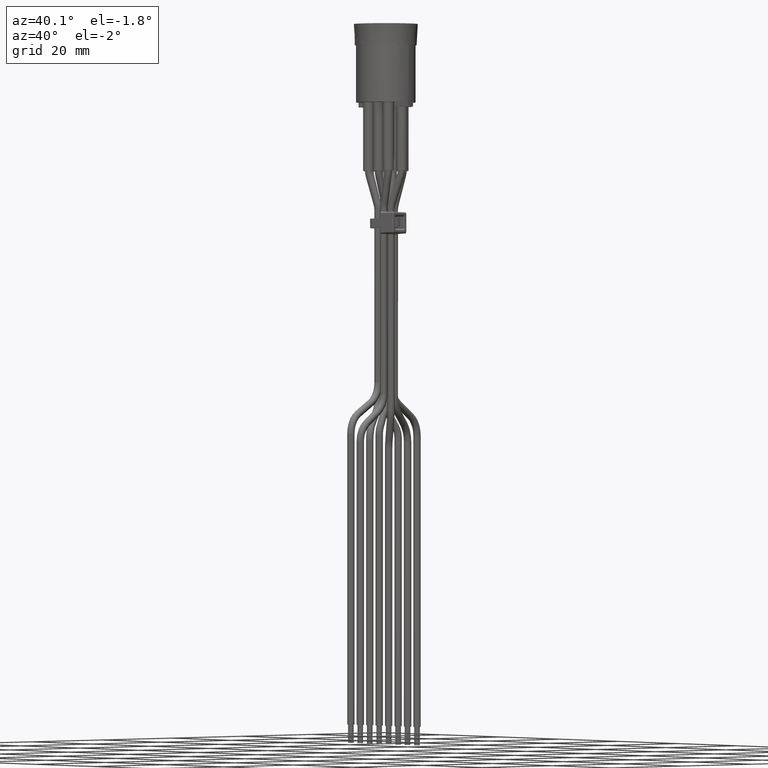
[diagram: clean part render]
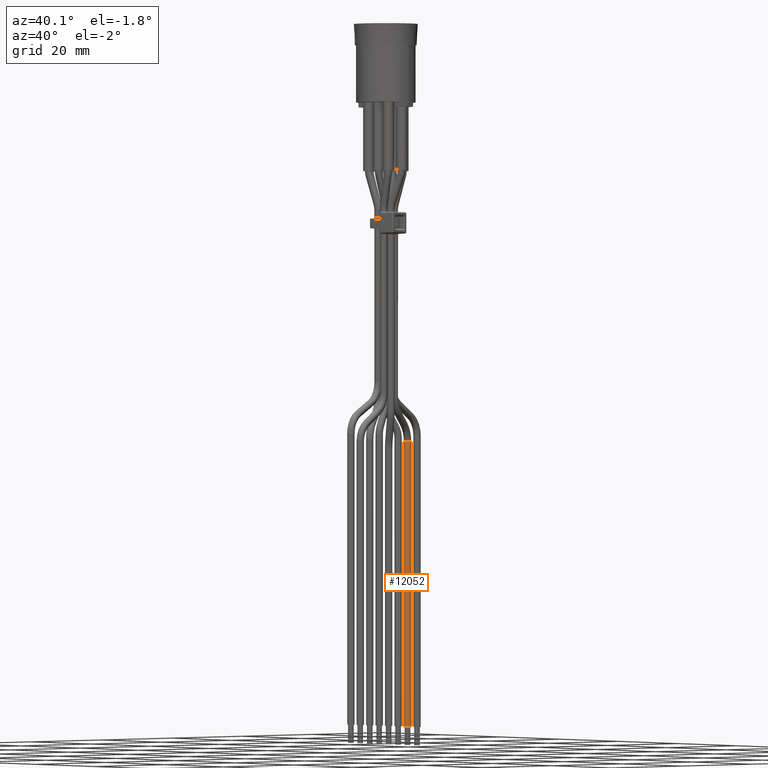
[diagram: same view with one face highlighted and labeled with its STEP entity id]
A machine part, auxiliary view. The second image highlights one B-rep face of the part: STEP entity #12052.
In plain terms, the highlighted cylindrical surface (bore or boss wall) has radius 0.8 mm, axis along (-0, 0, -1).
Its self-contained STEP definition (entity closure, byte-faithful):
#954=FACE_OUTER_BOUND('',#1630,.T.);
#1630=EDGE_LOOP('',(#8588,#8589,#8590,#8591,#8592));
#2323=CIRCLE('',#12795,0.800000000000001);
#2339=CIRCLE('',#12816,0.800000000000001);
#2340=CIRCLE('',#12817,0.800000000000001);
#2970=LINE('',#18225,#4120);
#4120=VECTOR('',#14342,0.800000000000001);
#5275=VERTEX_POINT('',#18182);
#5289=VERTEX_POINT('',#18219);
#5290=VERTEX_POINT('',#18220);
#6552=EDGE_CURVE('',#5275,#5275,#2323,.T.);
#6570=EDGE_CURVE('',#5289,#5290,#2339,.T.);
#6571=EDGE_CURVE('',#5290,#5289,#2340,.T.);
#6573=EDGE_CURVE('',#5275,#5289,#2970,.T.);
#8588=ORIENTED_EDGE('',*,*,#6552,.F.);
#8589=ORIENTED_EDGE('',*,*,#6573,.T.);
#8590=ORIENTED_EDGE('',*,*,#6570,.T.);
#8591=ORIENTED_EDGE('',*,*,#6571,.T.);
#8592=ORIENTED_EDGE('',*,*,#6573,.F.);
#11846=CYLINDRICAL_SURFACE('',#12819,0.800000000000001);
#12052=ADVANCED_FACE('',(#954),#11846,.T.);
#12795=AXIS2_PLACEMENT_3D('',#18183,#14290,#14291);
#12816=AXIS2_PLACEMENT_3D('',#18221,#14334,#14335);
#12817=AXIS2_PLACEMENT_3D('',#18222,#14336,#14337);
#12819=AXIS2_PLACEMENT_3D('',#18224,#14340,#14341);
#14290=DIRECTION('center_axis',(-3.30291349825983E-15,4.33031719776077E-15,
-1.));
#14291=DIRECTION('ref_axis',(-5.10514023696507E-15,1.,3.86888075315096E-15));
#14334=DIRECTION('center_axis',(-3.30291349825983E-15,4.33031719776077E-15,
-1.));
#14335=DIRECTION('ref_axis',(-5.10514023696507E-15,1.,3.86888075315096E-15));
#14336=DIRECTION('center_axis',(-3.30291349825983E-15,4.33031719776077E-15,
-1.));
#14337=DIRECTION('ref_axis',(-5.10514023696507E-15,1.,3.86888075315096E-15));
#14340=DIRECTION('center_axis',(-1.80411241501587E-15,5.2184956174609E-15,
-1.));
#14341=DIRECTION('ref_axis',(-5.10514023696507E-15,1.,5.21849561746091E-15));
#14342=DIRECTION('',(1.80411241501587E-15,-5.2184956174609E-15,1.));
#18182=CARTESIAN_POINT('',(-0.0214932559556855,6.60000000000063,-128.1));
#18183=CARTESIAN_POINT('Origin',(-0.0214932559556958,7.40000000000064,-128.1));
#18219=CARTESIAN_POINT('',(-0.0214932559555735,6.6000000000003,-66.0265609107733));
#18220=CARTESIAN_POINT('',(0.162172817093878,6.62136865359138,-66.0265609107733));
#18221=CARTESIAN_POINT('Origin',(-0.0214932559555838,7.40000000000031,-66.0265609107733));
#18222=CARTESIAN_POINT('Origin',(-0.0214932559555838,7.40000000000031,-66.0265609107733));
#18224=CARTESIAN_POINT('Origin',(-0.0214932559555838,7.40000000000031,-66.0265609107733));
#18225=CARTESIAN_POINT('',(-0.0214932559555798,6.60000000000031,-66.0265609107733));